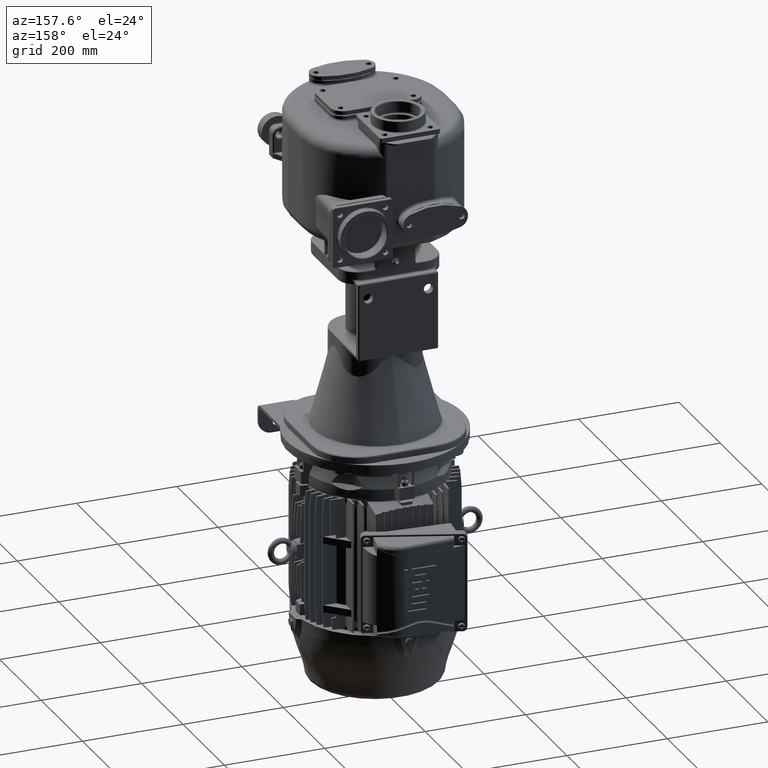
[diagram: clean part render]
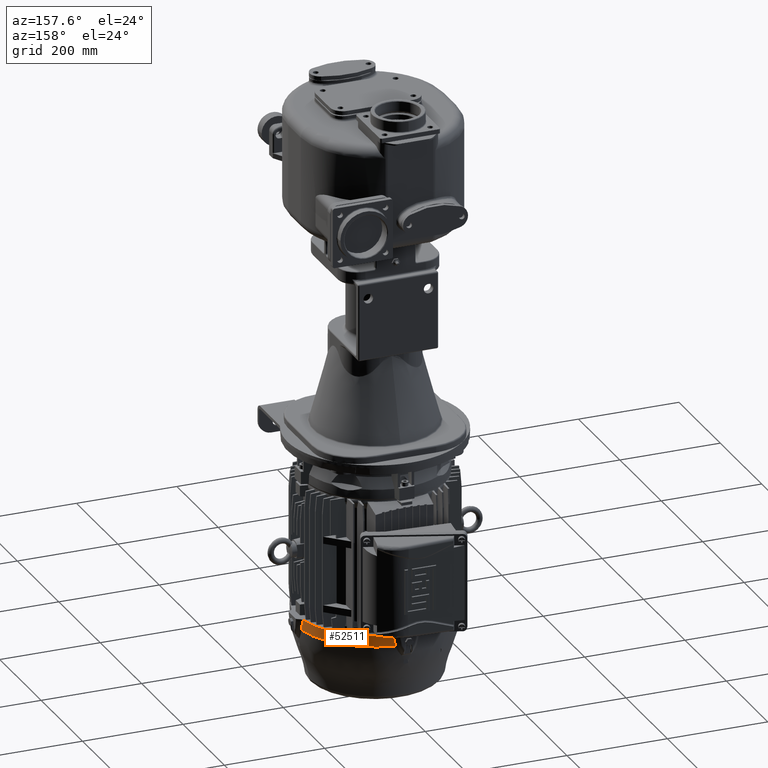
[diagram: same view with one face highlighted and labeled with its STEP entity id]
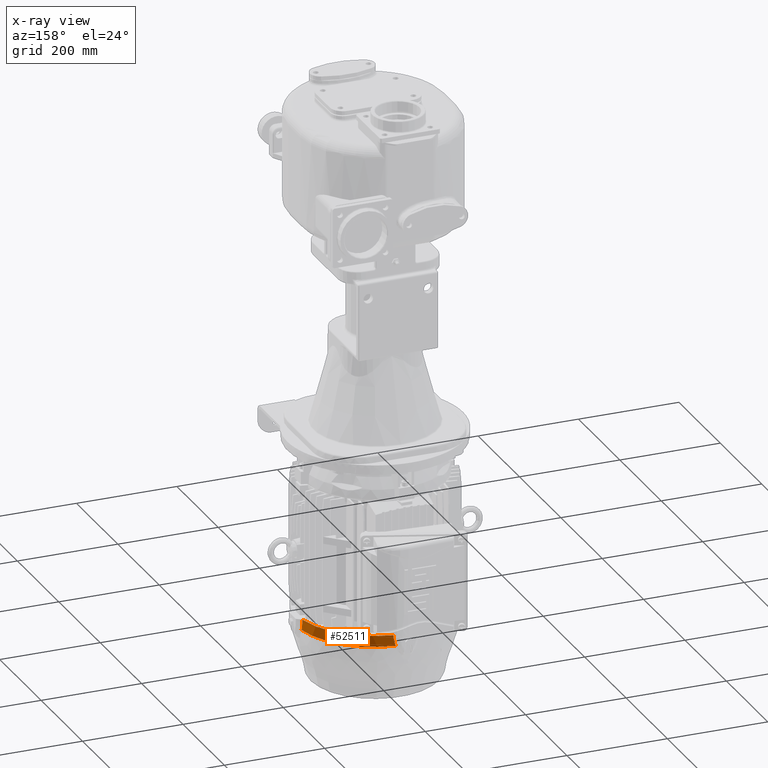
[diagram: x-ray of the same camera — body ghosted, the highlighted face saturated]
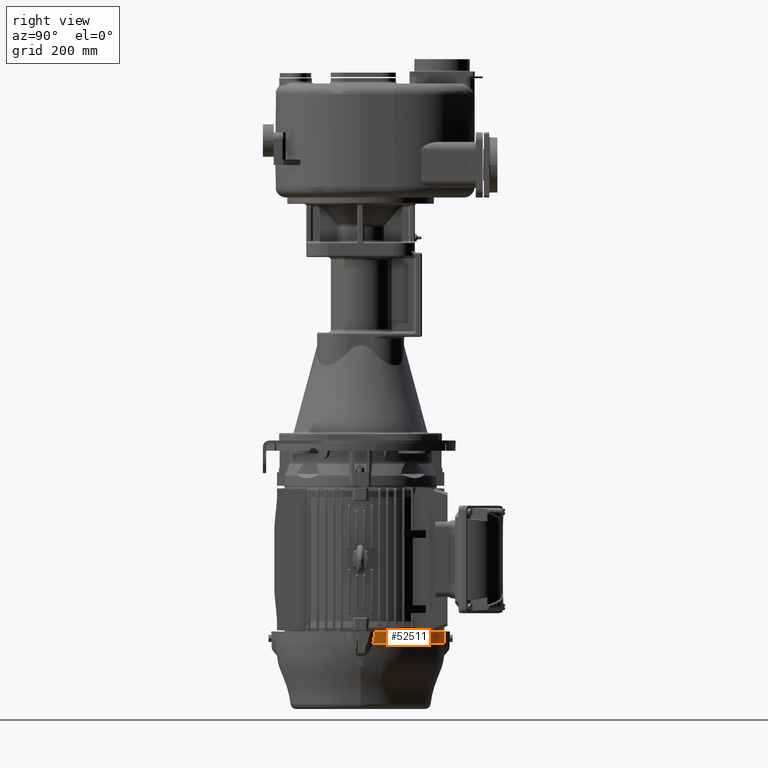
[diagram: same view with one face highlighted and labeled with its STEP entity id]
A machine part, auxiliary view. The second image highlights one B-rep face of the part: STEP entity #52511.
The next image is the same camera in x-ray: the body ghosted, the highlighted face saturated — about 0% of this face is hidden behind the body in this view.
A second angle (right view) of the same face is appended — the face is thin or edge-on in the first view.
In plain terms, the highlighted conical surface has half-angle 1.75 deg.
Its self-contained STEP definition (entity closure, byte-faithful):
#413=CARTESIAN_POINT('',(8.634161712655E-1,1.58E2,-9.0425E2));
#414=DIRECTION('',(0.E0,0.E0,1.E0));
#415=DIRECTION('',(9.857686118281E-1,1.681078342447E-1,0.E0));
#416=AXIS2_PLACEMENT_3D('',#413,#414,#415);
#513=CARTESIAN_POINT('',(2.668521182720E1,3.126292350262E2,-9.102668567172E2));
#514=CARTESIAN_POINT('',(2.674776772648E1,3.126394245791E2,-9.095989061599E2));
#515=CARTESIAN_POINT('',(2.687292923878E1,3.126598578257E2,-9.082626152397E2));
#516=CARTESIAN_POINT('',(2.706074085501E1,3.126902863934E2,-9.062569976525E2));
#517=CARTESIAN_POINT('',(2.718600622971E1,3.127104924295E2,-9.049191309229E2));
#518=CARTESIAN_POINT('',(2.724865994954E1,3.127206005307E2,-9.042500025034E2));
#520=CARTESIAN_POINT('',(2.309660939871E1,3.126829410924E2,-9.265578225722E2));
#521=CARTESIAN_POINT('',(2.402645526256E1,3.126306858381E2,-9.239208372831E2));
#522=CARTESIAN_POINT('',(2.555624250040E1,3.125597832090E2,-9.185691604524E2));
#523=CARTESIAN_POINT('',(2.642381124088E1,3.125863237854E2,-9.130613886804E2));
#524=CARTESIAN_POINT('',(2.668521182720E1,3.126292350262E2,-9.102668567172E2));
#526=CARTESIAN_POINT('',(1.554926511974E2,1.838217956559E2,-9.102668567173E2));
#527=CARTESIAN_POINT('',(1.554497399566E2,1.835603950696E2,-9.130613886805E2));
#528=CARTESIAN_POINT('',(1.554231993803E2,1.826928263291E2,-9.185691604524E2));
#529=CARTESIAN_POINT('',(1.554941020094E2,1.811630390913E2,-9.239208372831E2));
#530=CARTESIAN_POINT('',(1.555463572637E2,1.802331932274E2,-9.265578225722E2));
#532=CARTESIAN_POINT('',(1.555840230352E2,1.843852448519E2,-9.042500025034E2));
#533=CARTESIAN_POINT('',(1.555739149340E2,1.843225911321E2,-9.049191309229E2));
#534=CARTESIAN_POINT('',(1.555536996092E2,1.841973241827E2,-9.062569976525E2));
#535=CARTESIAN_POINT('',(1.555232748414E2,1.840095132107E2,-9.082626152397E2));
#536=CARTESIAN_POINT('',(1.555028407504E2,1.838843515552E2,-9.095989061598E2));
#537=CARTESIAN_POINT('',(1.554926511974E2,1.838217956559E2,-9.102668567173E2));
#957=CARTESIAN_POINT('',(8.634161712655E-1,1.58E2,-9.265578226274E2));
#958=DIRECTION('',(0.E0,0.E0,-1.E0));
#959=DIRECTION('',(1.422718546429E-1,9.898276210414E-1,0.E0));
#960=AXIS2_PLACEMENT_3D('',#957,#958,#959);
#47241=VERTEX_POINT('',#513);
#47242=VERTEX_POINT('',#518);
#47243=VERTEX_POINT('',#520);
#47257=VERTEX_POINT('',#526);
#47258=VERTEX_POINT('',#530);
#47840=VERTEX_POINT('',#532);
#52494=CARTESIAN_POINT('',(8.634161712655E-1,1.58E2,-9.154039113137E2));
#52495=DIRECTION('',(0.E0,0.E0,1.E0));
#52496=DIRECTION('',(1.E0,0.E0,0.E0));
#52497=AXIS2_PLACEMENT_3D('',#52494,#52495,#52496);
#52498=CONICAL_SURFACE('',#52497,1.566133880428E2,1.75E0);
#52499=ORIENTED_EDGE('',*,*,#52425,.T.);
#52501=ORIENTED_EDGE('',*,*,#52500,.F.);
#52503=ORIENTED_EDGE('',*,*,#52502,.F.);
#52505=ORIENTED_EDGE('',*,*,#52504,.T.);
#52507=ORIENTED_EDGE('',*,*,#52506,.F.);
#52508=ORIENTED_EDGE('',*,*,#52485,.F.);
#52509=EDGE_LOOP('',(#52499,#52501,#52503,#52505,#52507,#52508));
#52510=FACE_OUTER_BOUND('',#52509,.F.);
#52511=ADVANCED_FACE('',(#52510),#52498,.T.);
#417=CIRCLE('',#416,1.569541708551E2);
#519=B_SPLINE_CURVE_WITH_KNOTS('',3,(#513,#514,#515,#516,#517,#518),
.UNSPECIFIED.,.F.,.F.,(4,1,1,4),(0.E0,3.333333333333E-1,6.666666666667E-1,1.E0),
.UNSPECIFIED.);
#525=B_SPLINE_CURVE_WITH_KNOTS('',3,(#520,#521,#522,#523,#524),.UNSPECIFIED.,
.F.,.F.,(4,1,4),(0.E0,5.E-1,1.E0),.UNSPECIFIED.);
#531=B_SPLINE_CURVE_WITH_KNOTS('',3,(#526,#527,#528,#529,#530),.UNSPECIFIED.,
.F.,.F.,(4,1,4),(0.E0,5.E-1,1.E0),.UNSPECIFIED.);
#538=B_SPLINE_CURVE_WITH_KNOTS('',3,(#532,#533,#534,#535,#536,#537),
.UNSPECIFIED.,.F.,.F.,(4,1,1,4),(0.E0,3.333333333333E-1,6.666666666667E-1,1.E0),
.UNSPECIFIED.);
#961=CIRCLE('',#960,1.562726052306E2);
#52425=EDGE_CURVE('',#47840,#47242,#417,.T.);
#52485=EDGE_CURVE('',#47840,#47257,#538,.T.);
#52500=EDGE_CURVE('',#47241,#47242,#519,.T.);
#52502=EDGE_CURVE('',#47243,#47241,#525,.T.);
#52504=EDGE_CURVE('',#47243,#47258,#961,.T.);
#52506=EDGE_CURVE('',#47257,#47258,#531,.T.);